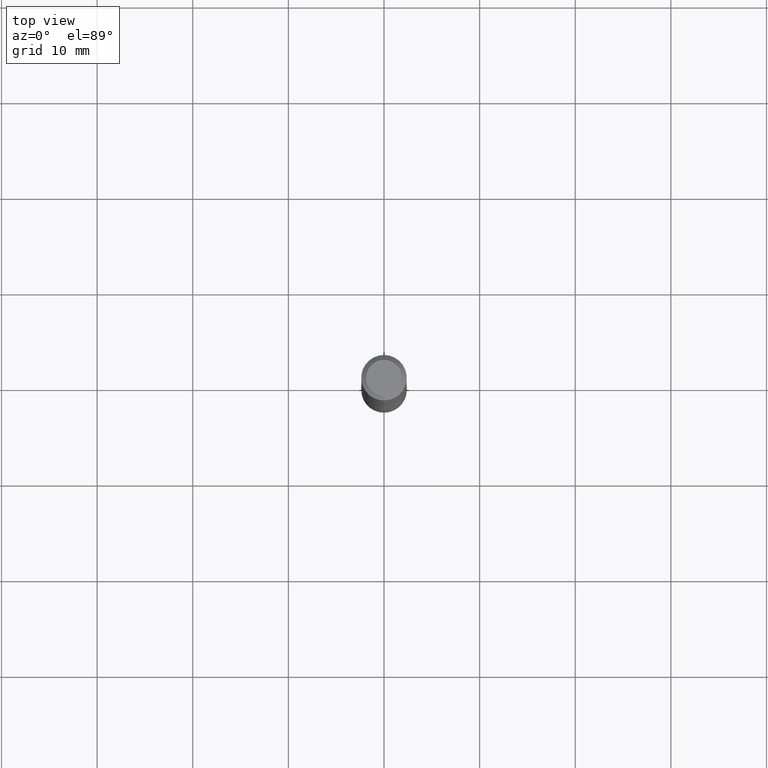
[diagram: clean part render]
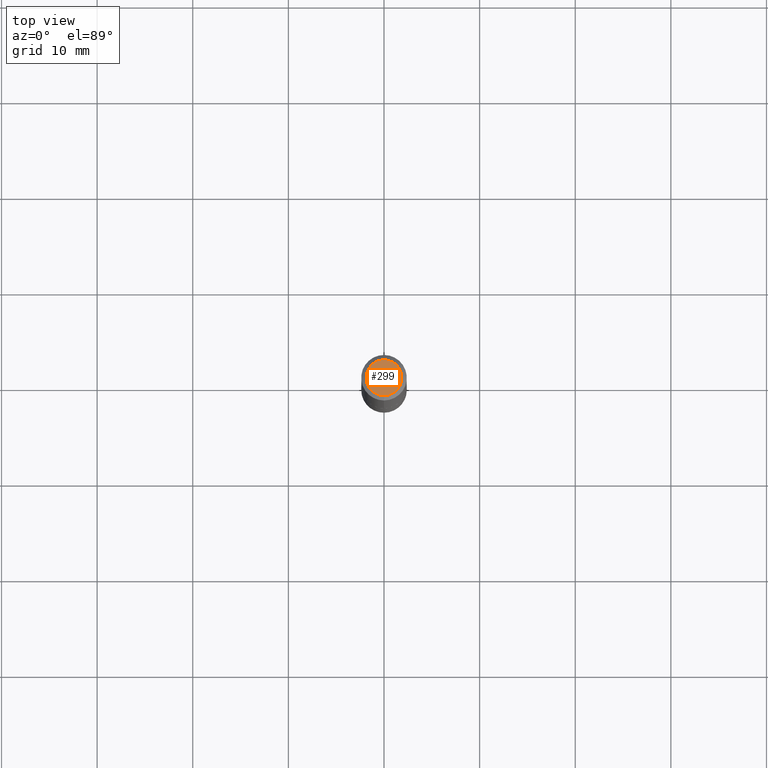
[diagram: same view with one face highlighted and labeled with its STEP entity id]
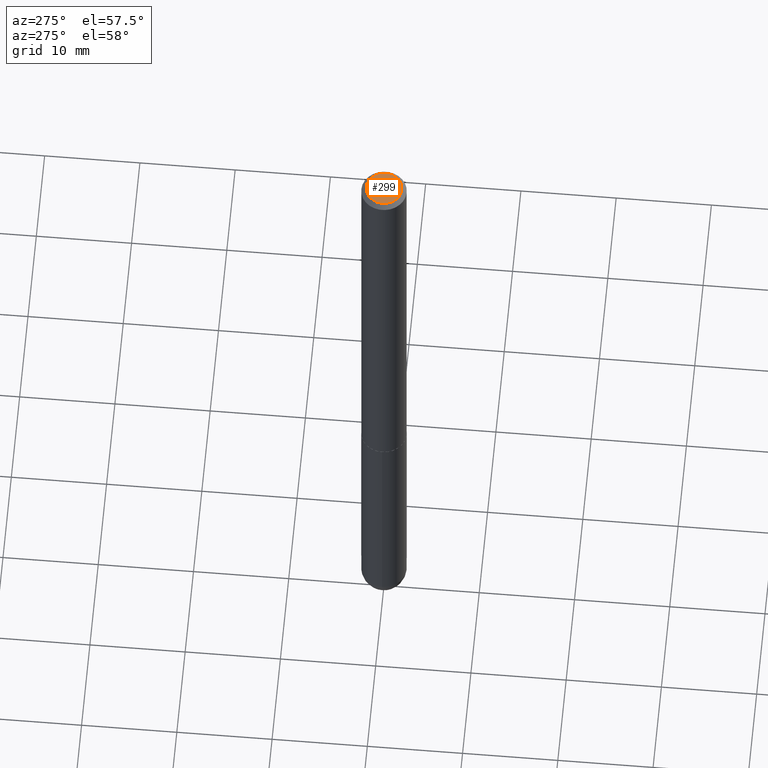
[diagram: same view with one face highlighted and labeled with its STEP entity id]
A machine part, top view. The second image highlights one B-rep face of the part: STEP entity #299.
A second angle (auxiliary view) of the same face is appended — the face is thin or edge-on in the first view.
In plain terms, the highlighted planar face has unit normal (0, -0, -1).
Its self-contained STEP definition (entity closure, byte-faithful):
#10 = CIRCLE ( 'NONE', #63, 0.07375000000000016265 ) ;
#26 = ORIENTED_EDGE ( 'NONE', *, *, #37, .T. ) ;
#34 = AXIS2_PLACEMENT_3D ( 'NONE', #407, #204, #76 ) ;
#37 = EDGE_CURVE ( 'NONE', #283, #98, #10, .T. ) ;
#43 = CARTESIAN_POINT ( 'NONE',  ( 5.848231242562257836E-16, 0.07375000000000016265, -3.556725360119918947E-16 ) ) ;
#63 = AXIS2_PLACEMENT_3D ( 'NONE', #343, #218, #210 ) ;
#74 = CIRCLE ( 'NONE', #34, 0.07375000000000016265 ) ;
#76 = DIRECTION ( 'NONE',  ( -6.982962677686265922E-15, -1.000000000000000000, 3.490710047582040221E-15 ) ) ;
#79 = CARTESIAN_POINT ( 'NONE',  ( 5.149934974793632743E-16, 0.07375000000000016265, -3.065562010105839588E-16 ) ) ;
#98 = VERTEX_POINT ( 'NONE', #43 ) ;
#145 = DIRECTION ( 'NONE',  ( 6.982962677686265922E-15, 1.000000000000000000, -3.490710047582039432E-15 ) ) ;
#204 = DIRECTION ( 'NONE',  ( -2.446007395994129455E-29, 3.490710047582039432E-15, 1.000000000000000000 ) ) ;
#210 = DIRECTION ( 'NONE',  ( -6.982962677686265922E-15, -1.000000000000000000, 3.490710047582040221E-15 ) ) ;
#218 = DIRECTION ( 'NONE',  ( -2.446007395994129455E-29, 3.490710047582039432E-15, 1.000000000000000000 ) ) ;
#279 = DIRECTION ( 'NONE',  ( 2.446007395994129174E-29, -3.490710047582039432E-15, -1.000000000000000000 ) ) ;
#283 = VERTEX_POINT ( 'NONE', #405 ) ;
#298 = AXIS2_PLACEMENT_3D ( 'NONE', #79, #279, #145 ) ;
#299 = ADVANCED_FACE ( 'NONE', ( #372 ), #401, .F. ) ;
#301 = EDGE_CURVE ( 'NONE', #98, #283, #74, .T. ) ;
#321 = EDGE_LOOP ( 'NONE', ( #409, #26 ) ) ;
#343 = CARTESIAN_POINT ( 'NONE',  ( 2.402778373551383333E-45, -3.429017681796402204E-31, -9.823267000281589641E-17 ) ) ;
#372 = FACE_OUTER_BOUND ( 'NONE', #321, .T. ) ;
#401 = PLANE ( 'NONE',  #298 ) ;
#405 = CARTESIAN_POINT ( 'NONE',  ( -5.745667073133662456E-16, -0.07375000000000016265, 1.592071960063601265E-16 ) ) ;
#407 = CARTESIAN_POINT ( 'NONE',  ( 2.402778373551383333E-45, -3.429017681796402204E-31, -9.823267000281589641E-17 ) ) ;
#409 = ORIENTED_EDGE ( 'NONE', *, *, #301, .T. ) ;